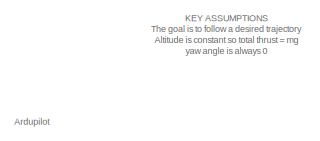
[diagram: root canvas - part 1/3, top left region]
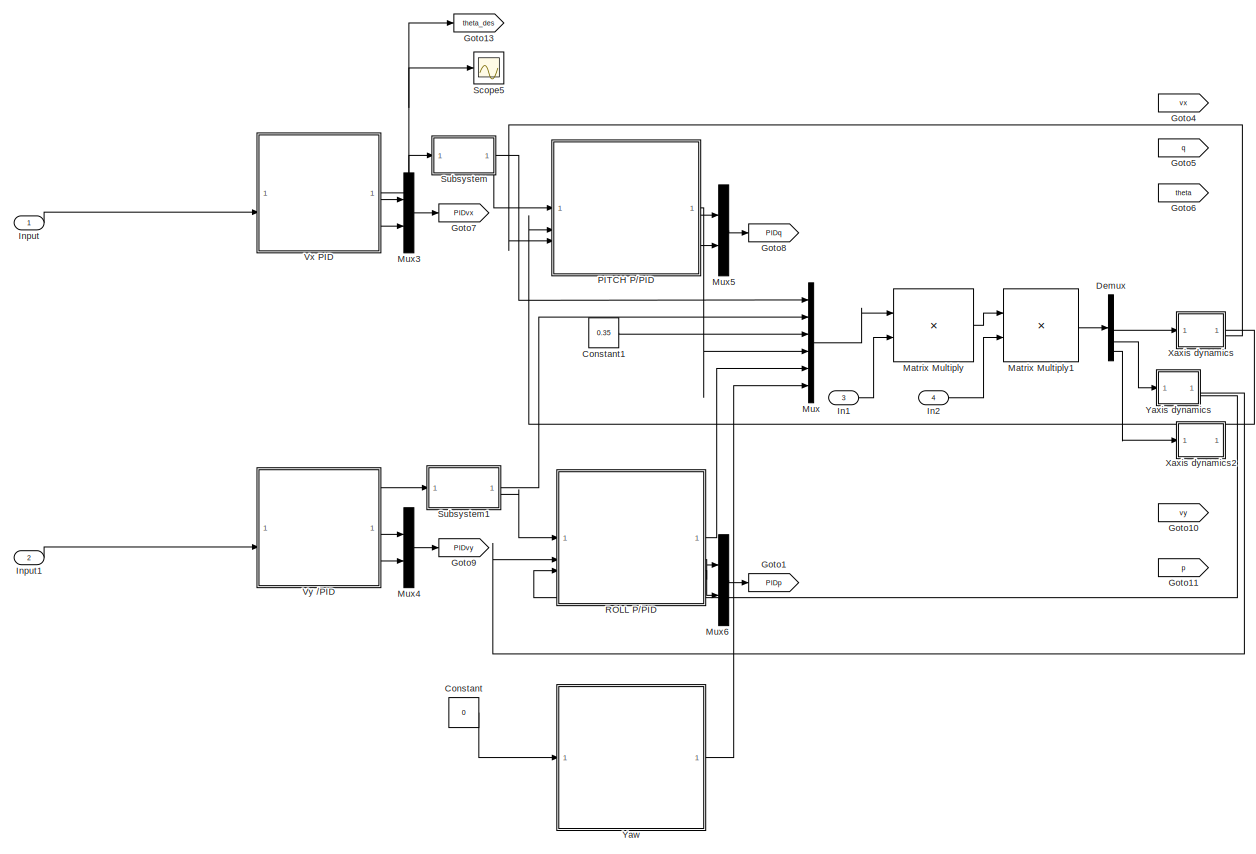
[diagram: root canvas - part 2/3, center side, full height]
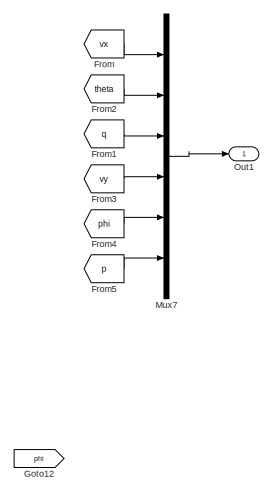
[diagram: root canvas - part 3/3, middle right region]
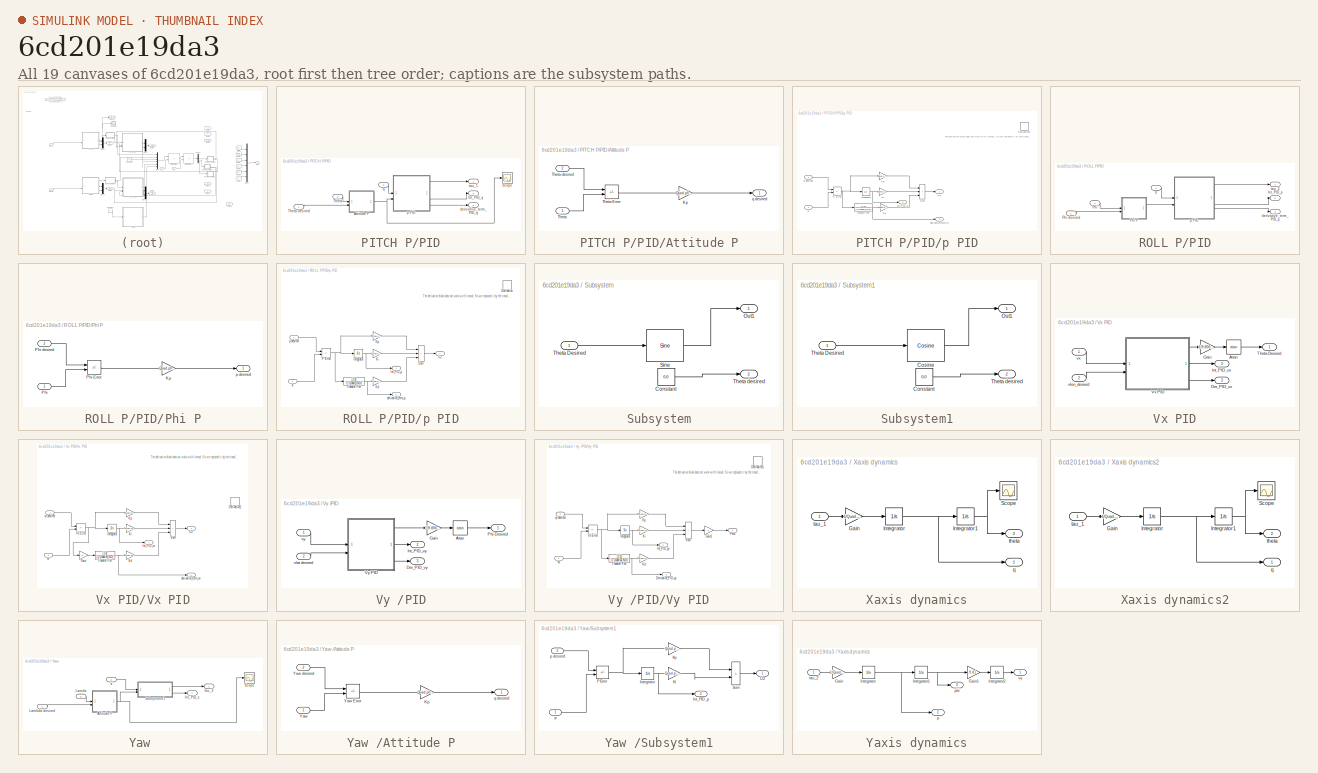
[diagram: thumbnail index - all 19 canvases of the model, root first then tree order]
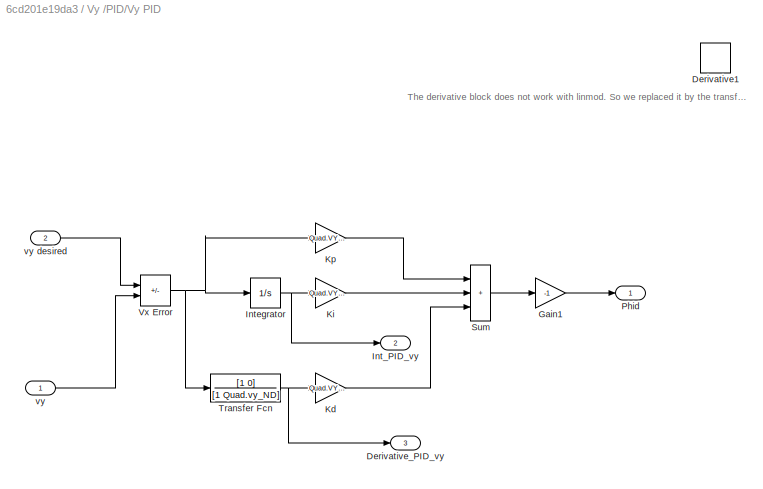
MODEL slx_6cd201e19da3
KIND model
CONFIG AbsTol = auto
CONFIG EnableMultiTasking = off
CONFIG FixedStep = 1/400
CONFIG MaxStep = auto
CONFIG MinStep = auto
CONFIG RelTol = 1e-3
CONFIG SampleTimeConstraint = Unconstrained
CONFIG SolverName = ode4
CONFIG StartTime = 0.0
CONFIG StopTime = 68
BLOCK [Constant] Constant
  Value = 0
BLOCK [Constant] Constant1
  Value = 0.35
BLOCK [Demux] Demux
  Outputs = 6
BLOCK [From] From
  GotoTag = vx
  TagVisibility = global
BLOCK [From] From1
  GotoTag = q
  TagVisibility = global
BLOCK [From] From2
  GotoTag = theta
  TagVisibility = global
BLOCK [From] From3
  GotoTag = vy
  TagVisibility = global
BLOCK [From] From4
  GotoTag = phi
  TagVisibility = global
BLOCK [From] From5
  GotoTag = p
  TagVisibility = global
BLOCK [Goto] Goto1
  GotoTag = PIDp
  TagVisibility = global
BLOCK [Goto] Goto10
  GotoTag = vy
  TagVisibility = global
BLOCK [Goto] Goto11
  GotoTag = p
  TagVisibility = global
BLOCK [Goto] Goto12
  GotoTag = phi
  TagVisibility = global
BLOCK [Goto] Goto13
  GotoTag = theta_des
  TagVisibility = global
BLOCK [Goto] Goto4
  GotoTag = vx
  TagVisibility = global
BLOCK [Goto] Goto5
  GotoTag = q
  TagVisibility = global
BLOCK [Goto] Goto6
  GotoTag = theta
  TagVisibility = global
BLOCK [Goto] Goto7
  GotoTag = PIDvx
  TagVisibility = global
BLOCK [Goto] Goto8
  GotoTag = PIDq
  TagVisibility = global
BLOCK [Goto] Goto9
  GotoTag = PIDvy
  TagVisibility = global
BLOCK [Inport] In1
  Port = 3
BLOCK [Inport] In2
  Port = 4
BLOCK [Inport] Input
BLOCK [Inport] Input1
  Port = 2
BLOCK [Product] Matrix Multiply
  Multiplication = Matrix(*)
BLOCK [Product] Matrix Multiply1
  Multiplication = Matrix(*)
BLOCK [Mux] Mux
  DisplayOption = bar
  Inputs = 6
BLOCK [Mux] Mux3
  DisplayOption = bar
  Inputs = 2
BLOCK [Mux] Mux4
  DisplayOption = bar
  Inputs = 2
BLOCK [Mux] Mux5
  DisplayOption = bar
  Inputs = 2
BLOCK [Mux] Mux6
  DisplayOption = bar
  Inputs = 2
BLOCK [Mux] Mux7
  DisplayOption = bar
  Inputs = 6
BLOCK [Outport] Out1
BLOCK [SubSystem] PITCH P//PID
BLOCK [SubSystem] PITCH P//PID/Attitude P
BLOCK [Gain] PITCH P//PID/Attitude P/Kp
  Gain = Quad.phi_KP
BLOCK [Inport] PITCH P//PID/Attitude P/Theta
BLOCK [Sum] PITCH P//PID/Attitude P/Theta Error
  IconShape = rectangular
  Inputs = +-
BLOCK [Inport] PITCH P//PID/Attitude P/Theta desired
  Port = 2
BLOCK [Outport] PITCH P//PID/Attitude P/q desired
BLOCK [Outport] PITCH P//PID/Int_PID_q
  Port = 2
BLOCK [Scope] PITCH P//PID/Scope
  Floating = off
  NumInputPorts = 1
  ScopeSpecificationString = Simulink.scopes.TimeScopeBlockCfg('CurrentConfiguration', extmgr.ConfigurationSet(extmgr.Configuration('Core','General UI',true),extmgr.Configuration('Core','Source UI',true),extmgr.Configuration('Sources','WiredSimulink',true,'DataLoggingVariableName','ScopeData4'),extmgr.Configuration('Visuals','Time Domain',true,'SerializedDisplays',{struct('MinYLimReal','-0.36576','MaxYLimReal','0.41351','YLab...<+1414ch>
BLOCK [Inport] PITCH P//PID/Theta
  Port = 3
BLOCK [Inport] PITCH P//PID/Theta desired
BLOCK [Outport] PITCH P//PID/derivative_term_PID_q
  Port = 3
BLOCK [SubSystem] PITCH P//PID/p PID
BLOCK [Derivative] PITCH P//PID/p PID/Derivative1
  Commented = through
BLOCK [Outport] PITCH P//PID/p PID/Int_PID_q
  Port = 2
BLOCK [Integrator] PITCH P//PID/p PID/Integrator
BLOCK [Gain] PITCH P//PID/p PID/Kd
  Gain = Quad.q_KD
BLOCK [Gain] PITCH P//PID/p PID/Ki
  Gain = Quad.q_KI
BLOCK [Gain] PITCH P//PID/p PID/Kp
  Gain = Quad.q_KP
BLOCK [Sum] PITCH P//PID/p PID/P Error
  IconShape = rectangular
  Inputs = +-
BLOCK [Sum] PITCH P//PID/p PID/Sum
  IconShape = rectangular
  Inputs = +++
BLOCK [TransferFcn] PITCH P//PID/p PID/Transfer Fcn
  Denominator = [1 Quad.q_ND]
  Numerator = [1 0]
BLOCK [Outport] PITCH P//PID/p PID/U3
BLOCK [Outport] PITCH P//PID/p PID/derivative_term_q
  Port = 3
BLOCK [Inport] PITCH P//PID/p PID/q
BLOCK [Inport] PITCH P//PID/p PID/q desired
  Port = 2
BLOCK [Inport] PITCH P//PID/q
  Port = 2
BLOCK [Outport] PITCH P//PID/tau_1
BLOCK [SubSystem] ROLL P//PID
BLOCK [Outport] ROLL P//PID/Int_PID_p
  Port = 2
BLOCK [Inport] ROLL P//PID/Phi
  Port = 3
BLOCK [SubSystem] ROLL P//PID/Phi P
BLOCK [Gain] ROLL P//PID/Phi P/Kp
  Gain = Quad.phi_KP
BLOCK [Inport] ROLL P//PID/Phi P/Phi
BLOCK [Sum] ROLL P//PID/Phi P/Phi Error
  IconShape = rectangular
  Inputs = +-
BLOCK [Inport] ROLL P//PID/Phi P/Phi desired
  Port = 2
BLOCK [Outport] ROLL P//PID/Phi P/p desired
BLOCK [Inport] ROLL P//PID/Phi desired
BLOCK [Outport] ROLL P//PID/derivative_term_PID_p
  Port = 3
BLOCK [Inport] ROLL P//PID/p
  Port = 2
BLOCK [SubSystem] ROLL P//PID/p PID
BLOCK [Derivative] ROLL P//PID/p PID/Derivative
  Commented = through
BLOCK [Outport] ROLL P//PID/p PID/Int_PID_p
  Port = 2
BLOCK [Integrator] ROLL P//PID/p PID/Integrator
BLOCK [Gain] ROLL P//PID/p PID/Kd
  Gain = Quad.p_KD
BLOCK [Gain] ROLL P//PID/p PID/Ki
  Gain = Quad.p_KI
BLOCK [Gain] ROLL P//PID/p PID/Kp
  Gain = Quad.p_KP
BLOCK [Sum] ROLL P//PID/p PID/P Error
  IconShape = rectangular
  Inputs = +-
BLOCK [Sum] ROLL P//PID/p PID/Sum
  IconShape = rectangular
  Inputs = +++
BLOCK [TransferFcn] ROLL P//PID/p PID/Transfer Fcn
  Denominator = [1 Quad.p_ND]
  Numerator = [1 0]
BLOCK [Outport] ROLL P//PID/p PID/U2
BLOCK [Outport] ROLL P//PID/p PID/derivative_term_p
  Port = 3
BLOCK [Inport] ROLL P//PID/p PID/p
BLOCK [Inport] ROLL P//PID/p PID/p desired
  Port = 2
BLOCK [Outport] ROLL P//PID/tau_2
BLOCK [Scope] Scope5
  Floating = off
  NumInputPorts = 1
  ScopeSpecificationString = Simulink.scopes.TimeScopeBlockCfg('CurrentConfiguration', extmgr.ConfigurationSet(extmgr.Configuration('Core','General UI',true),extmgr.Configuration('Core','Source UI',true),extmgr.Configuration('Sources','WiredSimulink',true,'DataLoggingVariableName','ScopeData5'),extmgr.Configuration('Visuals','Time Domain',true,'SerializedDisplays',{struct('MinYLimReal','-0.36499','MaxYLimReal','0.44637','YLab...<+1414ch>
BLOCK [SubSystem] Subsystem
BLOCK [Constant] Subsystem/Constant
  Value = 0.0
BLOCK [Outport] Subsystem/Out1
BLOCK [Reference] Subsystem/Sine  REF=simulink/Lookup
Tables/Sine
  SourceBlock = simulink/Lookup\nTables/Sine
  SourceType = Sine and Cosine
BLOCK [Inport] Subsystem/Theta Desired
BLOCK [Outport] Subsystem/Theta desired
  Port = 2
BLOCK [SubSystem] Subsystem1
BLOCK [Constant] Subsystem1/Constant
  Value = 0.0
BLOCK [Reference] Subsystem1/Cosine  REF=simulink/Lookup
Tables/Cosine
  SourceBlock = simulink/Lookup\nTables/Cosine
  SourceType = Sine and Cosine
BLOCK [Outport] Subsystem1/Out1
BLOCK [Inport] Subsystem1/Theta Desired
BLOCK [Outport] Subsystem1/Theta desired
  Port = 2
BLOCK [SubSystem] Vx PID
BLOCK [Trigonometry] Vx PID/Atan
  Operator = atan
BLOCK [Outport] Vx PID/Der_PID_vx
  Port = 3
BLOCK [Gain] Vx PID/Gain
  Gain = 1/9.80665
BLOCK [Outport] Vx PID/Int_PID_vx
  Port = 2
BLOCK [Outport] Vx PID/Theta Desired
  NameLocation = top
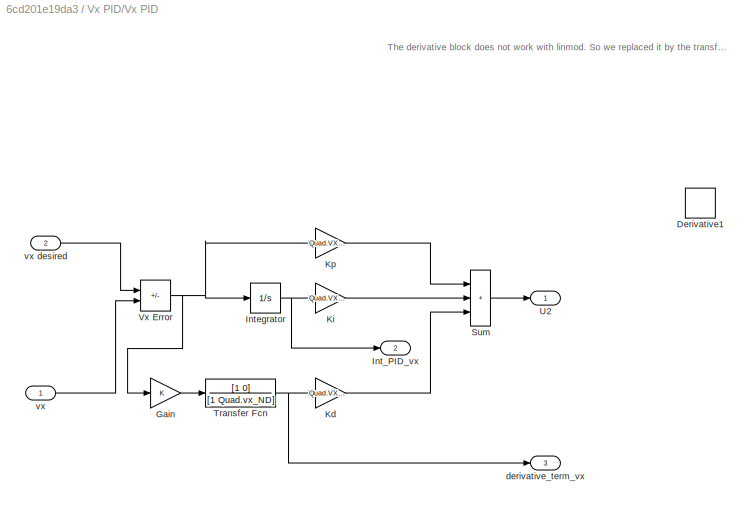
BLOCK [SubSystem] Vx PID/Vx PID
BLOCK [Derivative] Vx PID/Vx PID/Derivative1
  Commented = on
BLOCK [Gain] Vx PID/Vx PID/Gain
BLOCK [Outport] Vx PID/Vx PID/Int_PID_vx
  Port = 2
BLOCK [Integrator] Vx PID/Vx PID/Integrator
BLOCK [Gain] Vx PID/Vx PID/Kd
  Gain = Quad.VX_KD
BLOCK [Gain] Vx PID/Vx PID/Ki
  Gain = Quad.VX_KI
BLOCK [Gain] Vx PID/Vx PID/Kp
  Gain = Quad.VX_KP
BLOCK [Sum] Vx PID/Vx PID/Sum
  IconShape = rectangular
  Inputs = +++
BLOCK [TransferFcn] Vx PID/Vx PID/Transfer Fcn
  Denominator = [1 Quad.vx_ND]
  Numerator = [1 0]
BLOCK [Outport] Vx PID/Vx PID/U2
BLOCK [Sum] Vx PID/Vx PID/Vx Error
  IconShape = rectangular
  Inputs = +-
BLOCK [Outport] Vx PID/Vx PID/derivative_term_vx
  Port = 3
BLOCK [Inport] Vx PID/Vx PID/vx
BLOCK [Inport] Vx PID/Vx PID/vx desired
  Port = 2
BLOCK [Inport] Vx PID/vlon_desired
  Port = 2
BLOCK [Inport] Vx PID/vx
BLOCK [SubSystem] Vy //PID
BLOCK [Trigonometry] Vy //PID/Atan
  Operator = atan
BLOCK [Outport] Vy //PID/Der_PID_vy
  Port = 3
BLOCK [Gain] Vy //PID/Gain
  Gain = 1/9.80665
BLOCK [Outport] Vy //PID/Int_PID_vy
  Port = 2
BLOCK [Outport] Vy //PID/Phi Desired
BLOCK [SubSystem] Vy //PID/Vy PID
BLOCK [Derivative] Vy //PID/Vy PID/Derivative1
  Commented = through
BLOCK [Outport] Vy //PID/Vy PID/Derivative_PID_vy
  Port = 3
BLOCK [Gain] Vy //PID/Vy PID/Gain1
  Gain = -1
BLOCK [Outport] Vy //PID/Vy PID/Int_PID_vy
  Port = 2
BLOCK [Integrator] Vy //PID/Vy PID/Integrator
BLOCK [Gain] Vy //PID/Vy PID/Kd
  Gain = Quad.VY_KD
BLOCK [Gain] Vy //PID/Vy PID/Ki
  Gain = Quad.VY_KI
BLOCK [Gain] Vy //PID/Vy PID/Kp
  Gain = Quad.VY_KP
BLOCK [Outport] Vy //PID/Vy PID/Phid
BLOCK [Sum] Vy //PID/Vy PID/Sum
  IconShape = rectangular
  Inputs = +++
BLOCK [TransferFcn] Vy //PID/Vy PID/Transfer Fcn
  Denominator = [1 Quad.vy_ND]
  Numerator = [1 0]
BLOCK [Sum] Vy //PID/Vy PID/Vx Error
  IconShape = rectangular
  Inputs = +-
BLOCK [Inport] Vy //PID/Vy PID/vy
BLOCK [Inport] Vy //PID/Vy PID/vy desired
  Port = 2
BLOCK [Inport] Vy //PID/vlat desired
  Port = 2
BLOCK [Inport] Vy //PID/vy
BLOCK [SubSystem] Xaxis dynamics
BLOCK [Gain] Xaxis dynamics/Gain
  Gain = 1/Quad.Jy
BLOCK [Integrator] Xaxis dynamics/Integrator
BLOCK [Integrator] Xaxis dynamics/Integrator1
BLOCK [Scope] Xaxis dynamics/Scope
  Floating = off
  NumInputPorts = 1
  ScopeSpecificationString = Simulink.scopes.TimeScopeBlockCfg('CurrentConfiguration', extmgr.ConfigurationSet(extmgr.Configuration('Core','General UI',true),extmgr.Configuration('Core','Source UI',true),extmgr.Configuration('Sources','WiredSimulink',true,'DataLoggingVariableName','ScopeData3'),extmgr.Configuration('Visuals','Time Domain',true,'SerializedDisplays',{struct('MinYLimReal','-0.00071','MaxYLimReal','0.00238','YLab...<+1395ch>
BLOCK [Outport] Xaxis dynamics/q
BLOCK [Inport] Xaxis dynamics/tau_1
BLOCK [Outport] Xaxis dynamics/theta
  Port = 2
BLOCK [SubSystem] Xaxis dynamics2
BLOCK [Gain] Xaxis dynamics2/Gain
  Gain = 1/Quad.Jy
BLOCK [Integrator] Xaxis dynamics2/Integrator
BLOCK [Integrator] Xaxis dynamics2/Integrator1
BLOCK [Scope] Xaxis dynamics2/Scope
  Floating = off
  NumInputPorts = 1
  ScopeSpecificationString = Simulink.scopes.TimeScopeBlockCfg('CurrentConfiguration', extmgr.ConfigurationSet(extmgr.Configuration('Core','General UI',true),extmgr.Configuration('Core','Source UI',true),extmgr.Configuration('Sources','WiredSimulink',true,'DataLoggingVariableName','ScopeData3'),extmgr.Configuration('Visuals','Time Domain',true,'SerializedDisplays',{struct('MinYLimReal','-0.00071','MaxYLimReal','0.00238','YLab...<+1395ch>
BLOCK [Outport] Xaxis dynamics2/q
BLOCK [Inport] Xaxis dynamics2/tau_1
BLOCK [Outport] Xaxis dynamics2/theta
  Port = 2
BLOCK [SubSystem] Yaw 
BLOCK [SubSystem] Yaw /Attitude P
BLOCK [Gain] Yaw /Attitude P/Kp
  Gain = Quad.phi_KP
BLOCK [Inport] Yaw /Attitude P/Yaw
BLOCK [Sum] Yaw /Attitude P/Yaw Error
  IconShape = rectangular
  Inputs = +-
BLOCK [Inport] Yaw /Attitude P/Yaw desired
  Port = 2
BLOCK [Outport] Yaw /Attitude P/q desired
BLOCK [Outport] Yaw /Int_PID_s
  Port = 2
BLOCK [Inport] Yaw /Lambda desired
BLOCK [Inport] Yaw /Lamda 
  Port = 3
BLOCK [Scope] Yaw /Scope
  Floating = off
  NumInputPorts = 1
  ScopeSpecificationString = Simulink.scopes.TimeScopeBlockCfg('CurrentConfiguration', extmgr.ConfigurationSet(extmgr.Configuration('Core','General UI',true),extmgr.Configuration('Core','Source UI',true),extmgr.Configuration('Sources','WiredSimulink',true,'DataLoggingVariableName','ScopeData1'),extmgr.Configuration('Visuals','Time Domain',true,'SerializedDisplays',{struct('MinYLimReal','-0.36576','MaxYLimReal','0.41351','YLab...<+1414ch>
BLOCK [SubSystem] Yaw /Subsystem1
BLOCK [Outport] Yaw /Subsystem1/Int_PID_p
  Port = 2
BLOCK [Integrator] Yaw /Subsystem1/Integrator
BLOCK [Gain] Yaw /Subsystem1/Ki
  Gain = Quad.p_KI
BLOCK [Gain] Yaw /Subsystem1/Kp
  Gain = Quad.p_KP
BLOCK [Sum] Yaw /Subsystem1/P Error
  IconShape = rectangular
  Inputs = +-
BLOCK [Sum] Yaw /Subsystem1/Sum
  IconShape = rectangular
BLOCK [Outport] Yaw /Subsystem1/U2
BLOCK [Inport] Yaw /Subsystem1/p
BLOCK [Inport] Yaw /Subsystem1/p desired
  Port = 2
BLOCK [Inport] Yaw /s
  Port = 2
BLOCK [Outport] Yaw /tau_3
BLOCK [SubSystem] Yaxis dynamics
BLOCK [Gain] Yaxis dynamics/Gain
  Gain = 1/Quad.Jx
BLOCK [Gain] Yaxis dynamics/Gain1
  Gain = -9.81
BLOCK [Integrator] Yaxis dynamics/Integrator
BLOCK [Integrator] Yaxis dynamics/Integrator1
BLOCK [Integrator] Yaxis dynamics/Integrator2
BLOCK [Outport] Yaxis dynamics/p
  Port = 2
BLOCK [Outport] Yaxis dynamics/phi
  Port = 3
BLOCK [Inport] Yaxis dynamics/tau_2
BLOCK [Outport] Yaxis dynamics/vy
ANNOTATION (root): KEY ASSUMPTIONS The goal is to follow a desired trajectory Altitude is constant so total thrust = mg yaw angle is always 0
ANNOTATION (root): Ardupilot
ANNOTATION PITCH P//PID/p PID: The derivative block does not work with linmod. So we replaced it by the transfer s/(s+N)
ANNOTATION ROLL P//PID/p PID: The derivative block does not work with linmod. So we replaced it by the transfer s/(s+N)
ANNOTATION Vx PID/Vx PID: The derivative block does not work with linmod. So we replaced it by the transfer s/(s+N)
ANNOTATION Vy //PID/Vy PID: The derivative block does not work with linmod. So we replaced it by the transfer s/(s+N)
LINE Constant1:1 -> Mux:3
LINE Constant:1 -> Yaw :1
LINE Demux:4 -> Xaxis dynamics:1
LINE Demux:5 -> Yaxis dynamics:1
LINE Demux:6 -> Xaxis dynamics2:1
LINE From1:1 -> Mux7:3
LINE From2:1 -> Mux7:2
LINE From3:1 -> Mux7:4
LINE From4:1 -> Mux7:5
LINE From5:1 -> Mux7:6
LINE From:1 -> Mux7:1
LINE In1:1 -> Matrix Multiply:2
LINE In2:1 -> Matrix Multiply1:2
LINE Input1:1 -> Vy //PID:2
LINE Input:1 -> Vx PID:2
LINE Matrix Multiply1:1 -> Demux:1
LINE Matrix Multiply:1 -> Matrix Multiply1:1
LINE Mux3:1 -> Goto7:1
LINE Mux4:1 -> Goto9:1
LINE Mux5:1 -> Goto8:1
LINE Mux6:1 -> Goto1:1
LINE Mux7:1 -> Out1:1
LINE Mux:1 -> Matrix Multiply:1
LINE PITCH P//PID/Attitude P/Kp:1 -> PITCH P//PID/Attitude P/q desired:1
LINE PITCH P//PID/Attitude P/Theta Error:1 -> PITCH P//PID/Attitude P/Kp:1
LINE PITCH P//PID/Attitude P/Theta desired:1 -> PITCH P//PID/Attitude P/Theta Error:1
LINE PITCH P//PID/Attitude P/Theta:1 -> PITCH P//PID/Attitude P/Theta Error:2
NET PITCH P//PID/Attitude P:1 -> PITCH P//PID/Scope:1, PITCH P//PID/p PID:2
LINE PITCH P//PID/Theta desired:1 -> PITCH P//PID/Attitude P:2
LINE PITCH P//PID/Theta:1 -> PITCH P//PID/Attitude P:1
NET PITCH P//PID/p PID/Integrator:1 -> PITCH P//PID/p PID/Int_PID_q:1, PITCH P//PID/p PID/Ki:1
LINE PITCH P//PID/p PID/Kd:1 -> PITCH P//PID/p PID/Sum:3
LINE PITCH P//PID/p PID/Ki:1 -> PITCH P//PID/p PID/Sum:2
LINE PITCH P//PID/p PID/Kp:1 -> PITCH P//PID/p PID/Sum:1
NET PITCH P//PID/p PID/P Error:1 -> PITCH P//PID/p PID/Integrator:1, PITCH P//PID/p PID/Kp:1, PITCH P//PID/p PID/Transfer Fcn:1
LINE PITCH P//PID/p PID/Sum:1 -> PITCH P//PID/p PID/U3:1
NET PITCH P//PID/p PID/Transfer Fcn:1 -> PITCH P//PID/p PID/Kd:1, PITCH P//PID/p PID/derivative_term_q:1
LINE PITCH P//PID/p PID/q desired:1 -> PITCH P//PID/p PID/P Error:1
LINE PITCH P//PID/p PID/q:1 -> PITCH P//PID/p PID/P Error:2
LINE PITCH P//PID/p PID:1 -> PITCH P//PID/tau_1:1
LINE PITCH P//PID/p PID:2 -> PITCH P//PID/Int_PID_q:1
LINE PITCH P//PID/p PID:3 -> PITCH P//PID/derivative_term_PID_q:1
LINE PITCH P//PID/q:1 -> PITCH P//PID/p PID:1
LINE PITCH P//PID:1 -> Mux:4
LINE PITCH P//PID:2 -> Mux5:1
LINE PITCH P//PID:3 -> Mux5:2
LINE ROLL P//PID/Phi P/Kp:1 -> ROLL P//PID/Phi P/p desired:1
LINE ROLL P//PID/Phi P/Phi Error:1 -> ROLL P//PID/Phi P/Kp:1
LINE ROLL P//PID/Phi P/Phi desired:1 -> ROLL P//PID/Phi P/Phi Error:1
LINE ROLL P//PID/Phi P/Phi:1 -> ROLL P//PID/Phi P/Phi Error:2
LINE ROLL P//PID/Phi P:1 -> ROLL P//PID/p PID:2
LINE ROLL P//PID/Phi desired:1 -> ROLL P//PID/Phi P:2
LINE ROLL P//PID/Phi:1 -> ROLL P//PID/Phi P:1
NET ROLL P//PID/p PID/Integrator:1 -> ROLL P//PID/p PID/Int_PID_p:1, ROLL P//PID/p PID/Ki:1
LINE ROLL P//PID/p PID/Kd:1 -> ROLL P//PID/p PID/Sum:3
LINE ROLL P//PID/p PID/Ki:1 -> ROLL P//PID/p PID/Sum:2
LINE ROLL P//PID/p PID/Kp:1 -> ROLL P//PID/p PID/Sum:1
NET ROLL P//PID/p PID/P Error:1 -> ROLL P//PID/p PID/Integrator:1, ROLL P//PID/p PID/Kp:1, ROLL P//PID/p PID/Transfer Fcn:1
LINE ROLL P//PID/p PID/Sum:1 -> ROLL P//PID/p PID/U2:1
NET ROLL P//PID/p PID/Transfer Fcn:1 -> ROLL P//PID/p PID/Kd:1, ROLL P//PID/p PID/derivative_term_p:1
LINE ROLL P//PID/p PID/p desired:1 -> ROLL P//PID/p PID/P Error:1
LINE ROLL P//PID/p PID/p:1 -> ROLL P//PID/p PID/P Error:2
LINE ROLL P//PID/p PID:1 -> ROLL P//PID/tau_2:1
LINE ROLL P//PID/p PID:2 -> ROLL P//PID/Int_PID_p:1
LINE ROLL P//PID/p PID:3 -> ROLL P//PID/derivative_term_PID_p:1
LINE ROLL P//PID/p:1 -> ROLL P//PID/p PID:1
LINE ROLL P//PID:1 -> Mux:5
LINE ROLL P//PID:2 -> Mux6:1
LINE ROLL P//PID:3 -> Mux6:2
LINE Subsystem/Constant:1 -> Subsystem/Theta desired:1
LINE Subsystem/Sine:1 -> Subsystem/Out1:1
LINE Subsystem/Theta Desired:1 -> Subsystem/Sine:1
LINE Subsystem1/Constant:1 -> Subsystem1/Theta desired:1
LINE Subsystem1/Cosine:1 -> Subsystem1/Out1:1
LINE Subsystem1/Theta Desired:1 -> Subsystem1/Cosine:1
LINE Subsystem1:1 -> Mux:2
LINE Subsystem1:2 -> ROLL P//PID:1
LINE Subsystem:1 -> Mux:1
LINE Subsystem:2 -> PITCH P//PID:1
LINE Vx PID/Atan:1 -> Vx PID/Theta Desired:1
LINE Vx PID/Gain:1 -> Vx PID/Atan:1
LINE Vx PID/Vx PID/Gain:1 -> Vx PID/Vx PID/Transfer Fcn:1
NET Vx PID/Vx PID/Integrator:1 -> Vx PID/Vx PID/Int_PID_vx:1, Vx PID/Vx PID/Ki:1
LINE Vx PID/Vx PID/Kd:1 -> Vx PID/Vx PID/Sum:3
LINE Vx PID/Vx PID/Ki:1 -> Vx PID/Vx PID/Sum:2
LINE Vx PID/Vx PID/Kp:1 -> Vx PID/Vx PID/Sum:1
LINE Vx PID/Vx PID/Sum:1 -> Vx PID/Vx PID/U2:1
NET Vx PID/Vx PID/Transfer Fcn:1 -> Vx PID/Vx PID/Kd:1, Vx PID/Vx PID/derivative_term_vx:1
NET Vx PID/Vx PID/Vx Error:1 -> Vx PID/Vx PID/Gain:1, Vx PID/Vx PID/Integrator:1, Vx PID/Vx PID/Kp:1
LINE Vx PID/Vx PID/vx desired:1 -> Vx PID/Vx PID/Vx Error:1
LINE Vx PID/Vx PID/vx:1 -> Vx PID/Vx PID/Vx Error:2
LINE Vx PID/Vx PID:1 -> Vx PID/Gain:1
LINE Vx PID/Vx PID:2 -> Vx PID/Int_PID_vx:1
LINE Vx PID/Vx PID:3 -> Vx PID/Der_PID_vx:1
LINE Vx PID/vlon_desired:1 -> Vx PID/Vx PID:2
LINE Vx PID/vx:1 -> Vx PID/Vx PID:1
NET Vx PID:1 -> Goto13:1, Scope5:1, Subsystem:1
LINE Vx PID:2 -> Mux3:1
LINE Vx PID:3 -> Mux3:2
LINE Vy //PID/Atan:1 -> Vy //PID/Phi Desired:1
LINE Vy //PID/Gain:1 -> Vy //PID/Atan:1
LINE Vy //PID/Vy PID/Gain1:1 -> Vy //PID/Vy PID/Phid:1
NET Vy //PID/Vy PID/Integrator:1 -> Vy //PID/Vy PID/Int_PID_vy:1, Vy //PID/Vy PID/Ki:1
LINE Vy //PID/Vy PID/Kd:1 -> Vy //PID/Vy PID/Sum:3
LINE Vy //PID/Vy PID/Ki:1 -> Vy //PID/Vy PID/Sum:2
LINE Vy //PID/Vy PID/Kp:1 -> Vy //PID/Vy PID/Sum:1
LINE Vy //PID/Vy PID/Sum:1 -> Vy //PID/Vy PID/Gain1:1
NET Vy //PID/Vy PID/Transfer Fcn:1 -> Vy //PID/Vy PID/Derivative_PID_vy:1, Vy //PID/Vy PID/Kd:1
NET Vy //PID/Vy PID/Vx Error:1 -> Vy //PID/Vy PID/Integrator:1, Vy //PID/Vy PID/Kp:1, Vy //PID/Vy PID/Transfer Fcn:1
LINE Vy //PID/Vy PID/vy desired:1 -> Vy //PID/Vy PID/Vx Error:1
LINE Vy //PID/Vy PID/vy:1 -> Vy //PID/Vy PID/Vx Error:2
LINE Vy //PID/Vy PID:1 -> Vy //PID/Gain:1
LINE Vy //PID/Vy PID:2 -> Vy //PID/Int_PID_vy:1
LINE Vy //PID/Vy PID:3 -> Vy //PID/Der_PID_vy:1
LINE Vy //PID/vlat desired:1 -> Vy //PID/Vy PID:2
LINE Vy //PID/vy:1 -> Vy //PID/Vy PID:1
LINE Vy //PID:1 -> Subsystem1:1
LINE Vy //PID:2 -> Mux4:1
LINE Vy //PID:3 -> Mux4:2
LINE Xaxis dynamics/Gain:1 -> Xaxis dynamics/Integrator:1
NET Xaxis dynamics/Integrator1:1 -> Xaxis dynamics/Scope:1, Xaxis dynamics/theta:1
NET Xaxis dynamics/Integrator:1 -> Xaxis dynamics/Integrator1:1, Xaxis dynamics/q:1
LINE Xaxis dynamics/tau_1:1 -> Xaxis dynamics/Gain:1
LINE Xaxis dynamics2/Gain:1 -> Xaxis dynamics2/Integrator:1
NET Xaxis dynamics2/Integrator1:1 -> Xaxis dynamics2/Scope:1, Xaxis dynamics2/theta:1
NET Xaxis dynamics2/Integrator:1 -> Xaxis dynamics2/Integrator1:1, Xaxis dynamics2/q:1
LINE Xaxis dynamics2/tau_1:1 -> Xaxis dynamics2/Gain:1
LINE Xaxis dynamics:1 -> PITCH P//PID:2
LINE Xaxis dynamics:2 -> PITCH P//PID:3
LINE Yaw /Attitude P/Kp:1 -> Yaw /Attitude P/q desired:1
LINE Yaw /Attitude P/Yaw Error:1 -> Yaw /Attitude P/Kp:1
LINE Yaw /Attitude P/Yaw desired:1 -> Yaw /Attitude P/Yaw Error:1
LINE Yaw /Attitude P/Yaw:1 -> Yaw /Attitude P/Yaw Error:2
NET Yaw /Attitude P:1 -> Yaw /Scope:1, Yaw /Subsystem1:2
LINE Yaw /Lambda desired:1 -> Yaw /Attitude P:2
LINE Yaw /Lamda :1 -> Yaw /Attitude P:1
NET Yaw /Subsystem1/Integrator:1 -> Yaw /Subsystem1/Int_PID_p:1, Yaw /Subsystem1/Ki:1
LINE Yaw /Subsystem1/Ki:1 -> Yaw /Subsystem1/Sum:2
LINE Yaw /Subsystem1/Kp:1 -> Yaw /Subsystem1/Sum:1
NET Yaw /Subsystem1/P Error:1 -> Yaw /Subsystem1/Integrator:1, Yaw /Subsystem1/Kp:1
LINE Yaw /Subsystem1/Sum:1 -> Yaw /Subsystem1/U2:1
LINE Yaw /Subsystem1/p desired:1 -> Yaw /Subsystem1/P Error:1
LINE Yaw /Subsystem1/p:1 -> Yaw /Subsystem1/P Error:2
LINE Yaw /Subsystem1:1 -> Yaw /tau_3:1
LINE Yaw /Subsystem1:2 -> Yaw /Int_PID_s:1
LINE Yaw /s:1 -> Yaw /Subsystem1:1
LINE Yaw :1 -> Mux:6
LINE Yaxis dynamics/Gain1:1 -> Yaxis dynamics/Integrator2:1
LINE Yaxis dynamics/Gain:1 -> Yaxis dynamics/Integrator:1
NET Yaxis dynamics/Integrator1:1 -> Yaxis dynamics/Gain1:1, Yaxis dynamics/phi:1
LINE Yaxis dynamics/Integrator2:1 -> Yaxis dynamics/vy:1
NET Yaxis dynamics/Integrator:1 -> Yaxis dynamics/Integrator1:1, Yaxis dynamics/p:1
LINE Yaxis dynamics/tau_2:1 -> Yaxis dynamics/Gain:1
LINE Yaxis dynamics:2 -> ROLL P//PID:2
LINE Yaxis dynamics:3 -> ROLL P//PID:3
note: NET lines group one-source signal fan-out (src -> all destinations, sorted); 1:1 wires keep LINE
